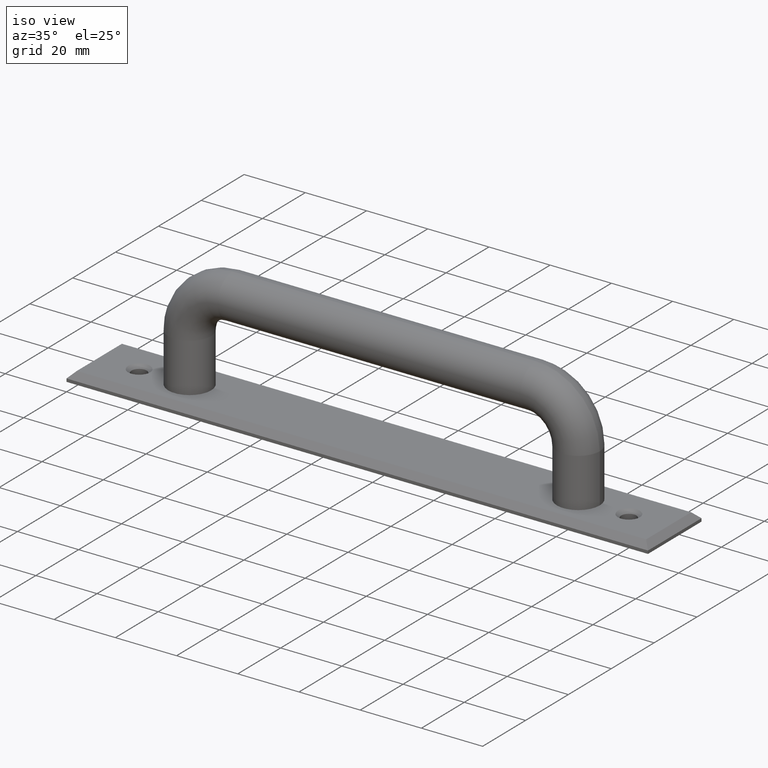
[diagram: clean part render]
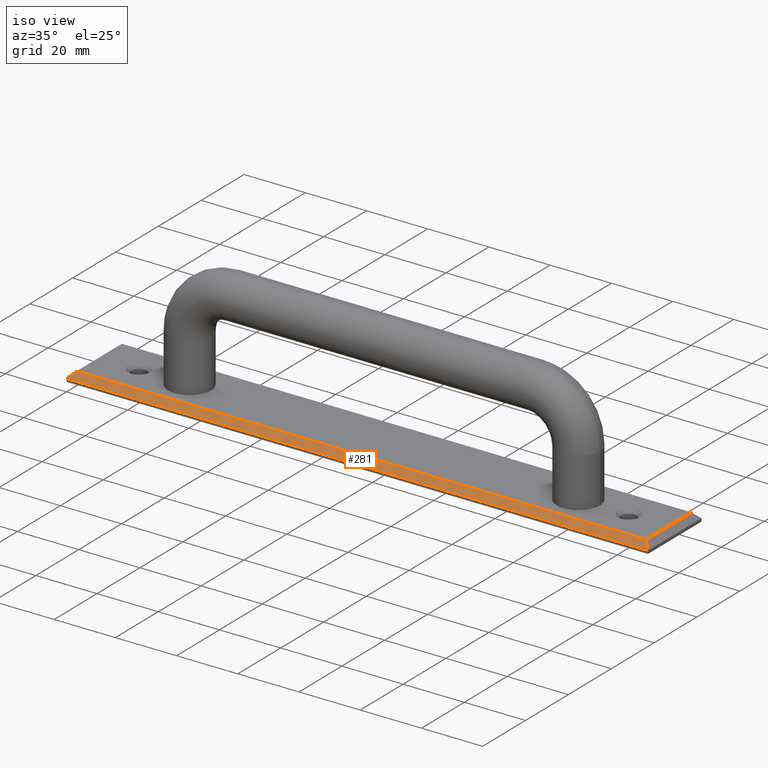
[diagram: same view with one face highlighted and labeled with its STEP entity id]
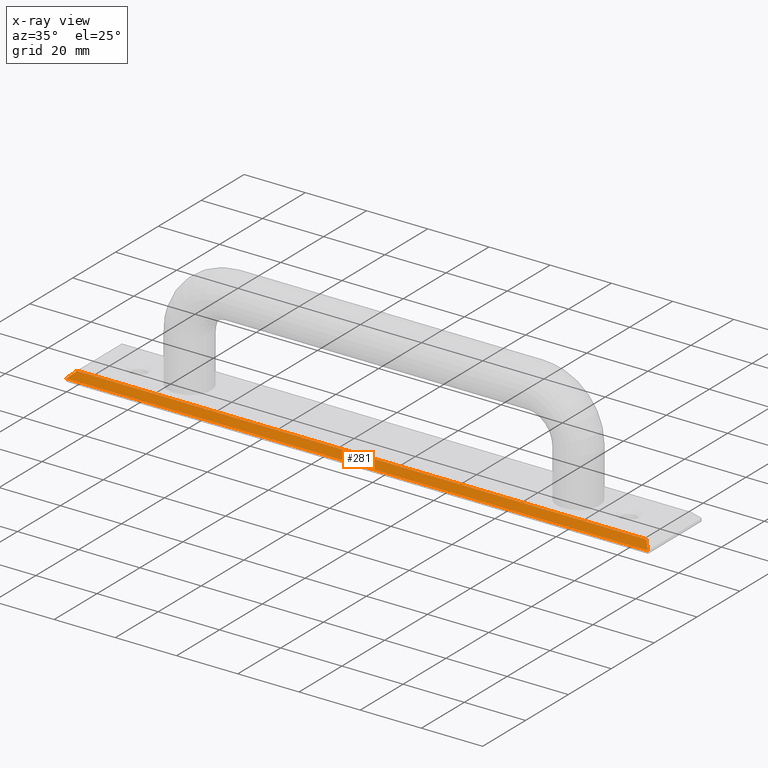
[diagram: x-ray of the same camera — body ghosted, the highlighted face saturated]
A machine part, iso view. The second image highlights one B-rep face of the part: STEP entity #281.
The next image is the same camera in x-ray: the body ghosted, the highlighted face saturated — about 0% of this face is hidden behind the body in this view.
In plain terms, the highlighted planar face has unit normal (0, -0.7071, 0.7071).
Its self-contained STEP definition (entity closure, byte-faithful):
#17=LINE('',#431,#37);
#21=LINE('',#439,#41);
#24=LINE('',#449,#44);
#25=LINE('',#450,#45);
#37=VECTOR('',#352,3.46410161513775);
#41=VECTOR('',#358,186.);
#44=VECTOR('',#367,190.);
#45=VECTOR('',#368,3.46410161513774);
#59=PLANE('',#310);
#91=FACE_OUTER_BOUND('',#119,.T.);
#119=EDGE_LOOP('',(#227,#228,#229,#230));
#155=VERTEX_POINT('',#429);
#156=VERTEX_POINT('',#430);
#159=VERTEX_POINT('',#438);
#163=VERTEX_POINT('',#448);
#179=EDGE_CURVE('',#155,#156,#17,.T.);
#183=EDGE_CURVE('',#159,#156,#21,.T.);
#188=EDGE_CURVE('',#155,#163,#24,.T.);
#189=EDGE_CURVE('',#159,#163,#25,.T.);
#227=ORIENTED_EDGE('',*,*,#179,.F.);
#228=ORIENTED_EDGE('',*,*,#188,.T.);
#229=ORIENTED_EDGE('',*,*,#189,.F.);
#230=ORIENTED_EDGE('',*,*,#183,.T.);
#281=ADVANCED_FACE('',(#91),#59,.T.);
#310=AXIS2_PLACEMENT_3D('',#447,#365,#366);
#352=DIRECTION('',(0.577350269189626,0.577350269189626,0.577350269189626));
#358=DIRECTION('',(-1.,0.,0.));
#365=DIRECTION('center_axis',(0.,-0.707106781186547,0.707106781186548));
#366=DIRECTION('ref_axis',(1.,0.,0.));
#367=DIRECTION('',(1.,0.,0.));
#368=DIRECTION('',(0.577350269189624,-0.577350269189627,-0.577350269189627));
#429=CARTESIAN_POINT('',(0.,0.,1.));
#430=CARTESIAN_POINT('',(2.,2.,3.));
#431=CARTESIAN_POINT('',(11.7083333333333,11.7083333333333,12.7083333333333));
#438=CARTESIAN_POINT('',(188.,2.,3.));
#439=CARTESIAN_POINT('',(47.5,2.,3.));
#447=CARTESIAN_POINT('Origin',(47.5,1.,2.));
#448=CARTESIAN_POINT('',(190.,0.,1.));
#449=CARTESIAN_POINT('',(47.5,0.,1.));
#450=CARTESIAN_POINT('',(164.541666666667,25.4583333333333,26.4583333333333));